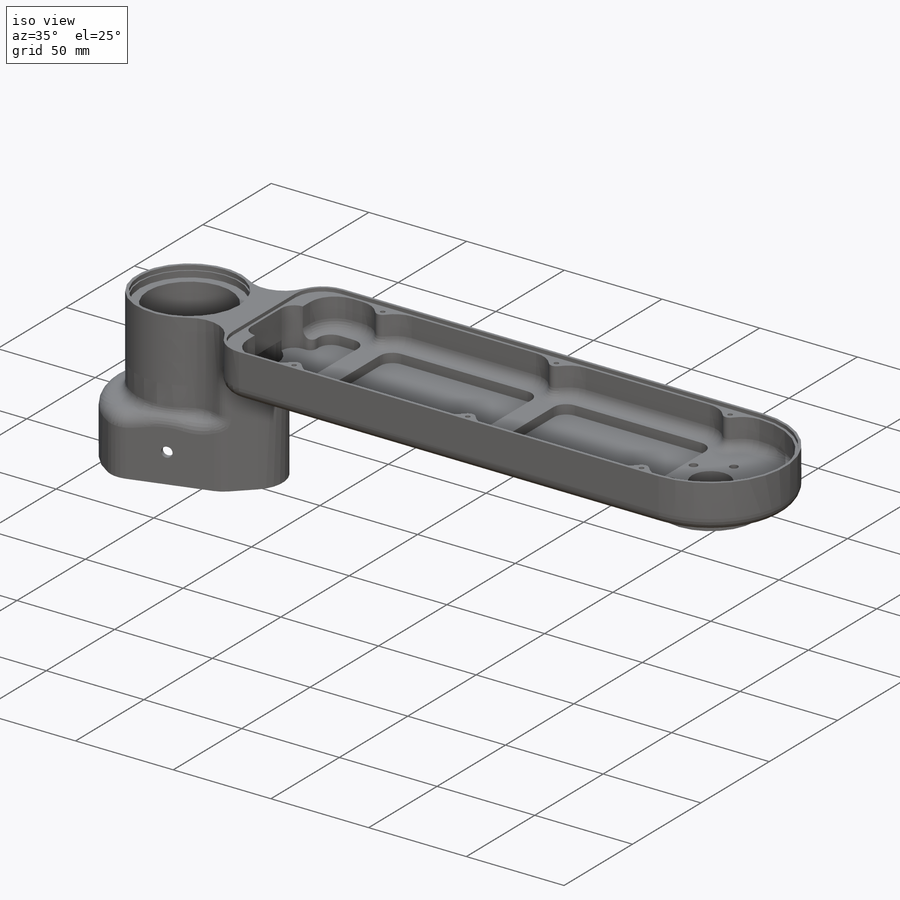
[diagram: iso view]
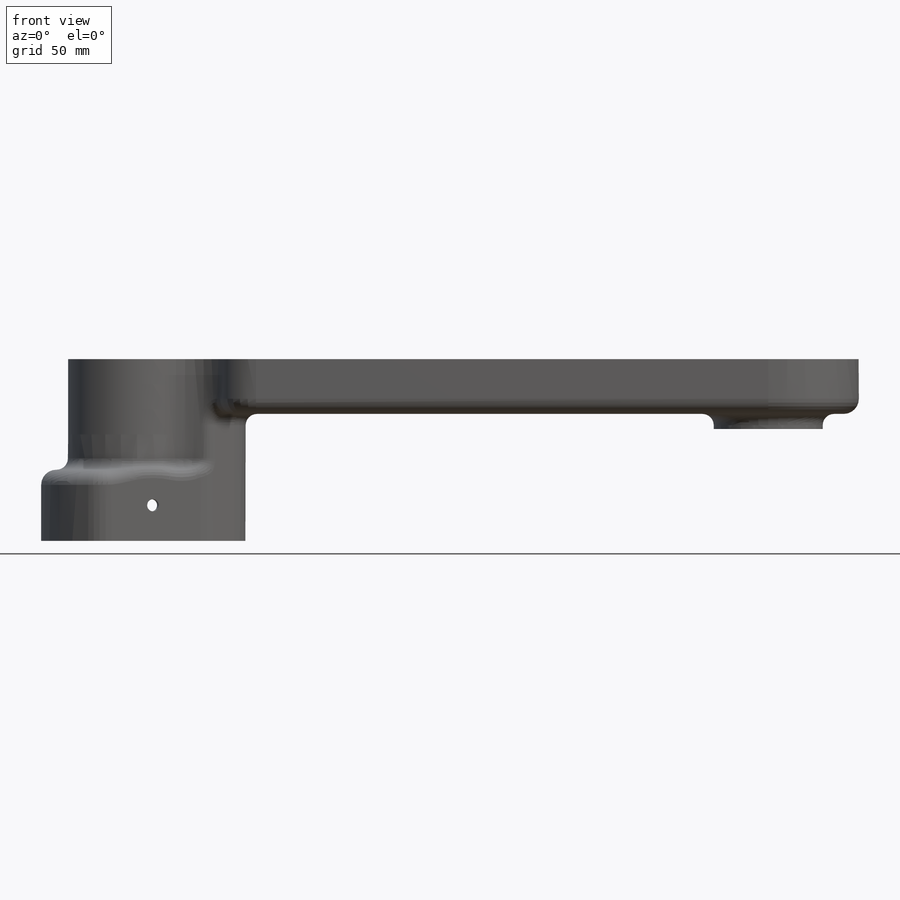
[diagram: front view]
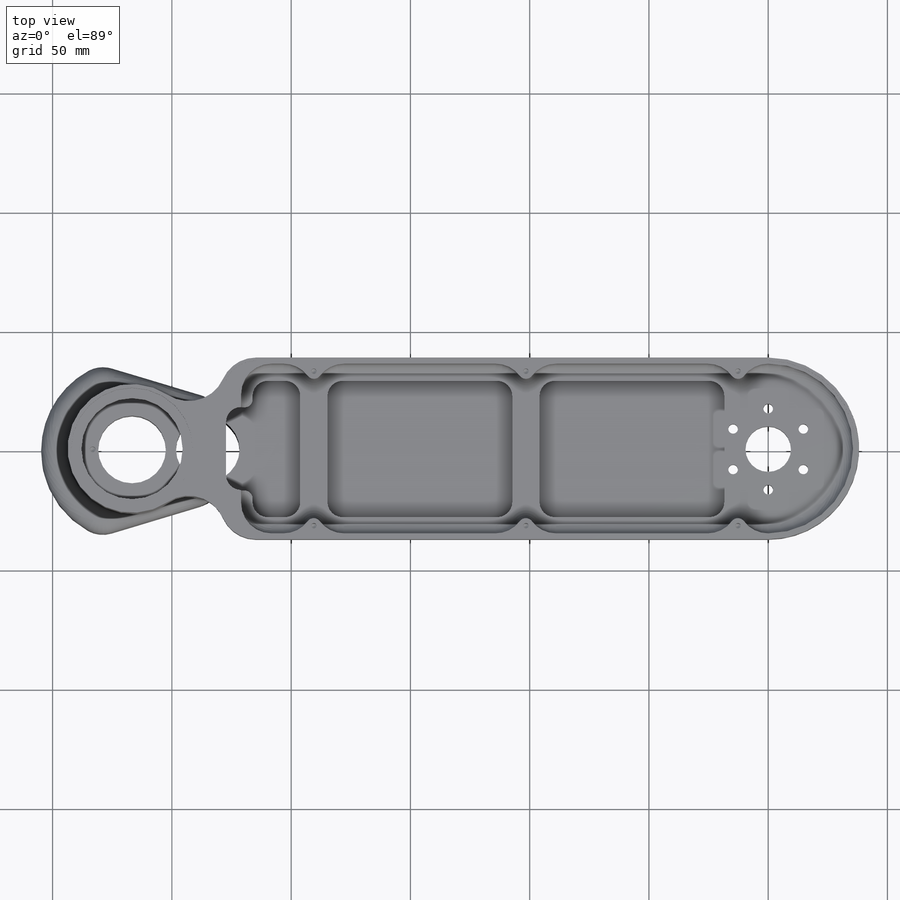
[diagram: top view]
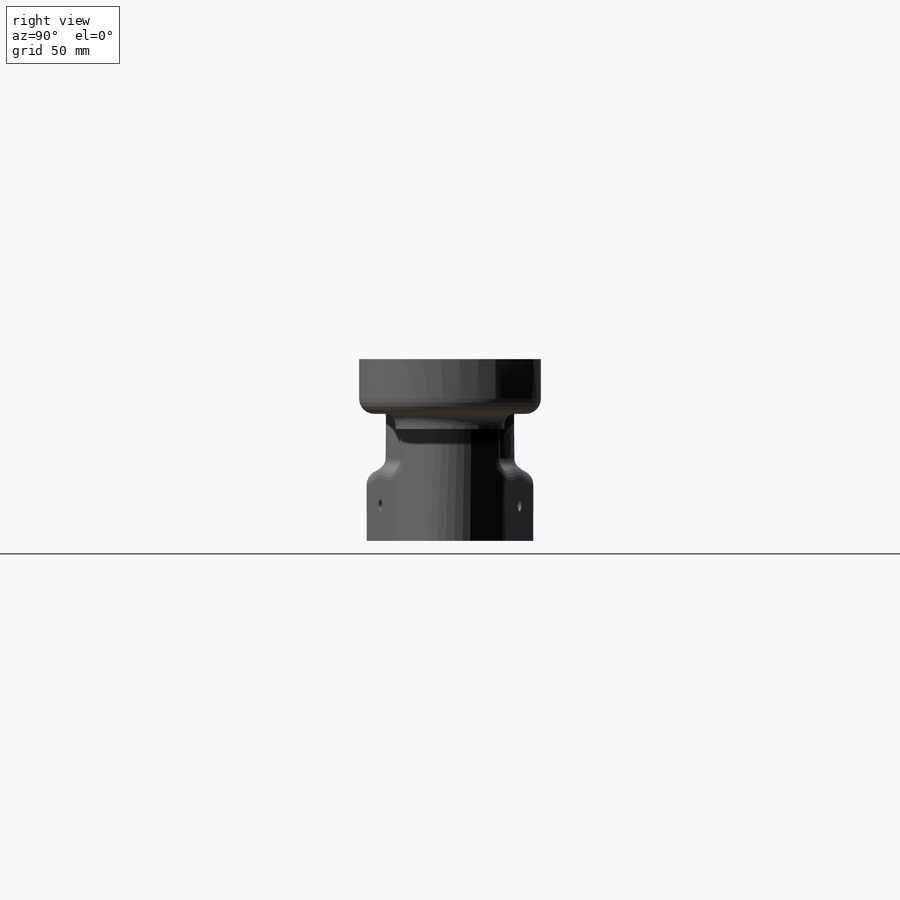
[diagram: right view]
SOLIDWORKS PART (.sldprt)
format: sldprt  version: not decoded by parser v0  size: 4,354,048 bytes
history: native  units: mm
features: sketch x43, cut_extrude x14, hole x10, extrude x7, fillet x7, plane x4, thread x4, pattern_circular x4, mirror x4, pattern_linear x4, delete_body x3, cut_revolve x2, material x1 + 1 further entry (+8 scaffold rows collapsed)
feature tree (116):
  scaffold x8  (default folders/planes/origin — collapsed)
  material  "Delrin 2700 NC010, Low Viscosity Acetal Copolymer (SS)"
  plane  "Front-Back Midplane"
  plane  "Horizontal Midplane"
  plane  "Left-Right Midplane"
  plane  "Plane1"  Offset=266.7mm
  "Hand"
  sketch  "Sketch1"  dims[D1=76.2mm D2=304.8mm]
  extrude  "Boss-Extrude1"  Depth=31.75mm
  sketch  "Sketch2"  dims[c1.D2=15.875mm c1.D1=304.8mm c2.D1=15.0deg c3.D1=31.75mm]
  cut_extrude  "Cut-Extrude1"  Depth=8.78078mm
  sketch  "Sketch4"  dims[c1.D1=2.54mm c1.D2=3.2258mm c1.D3=~18.75028mm c1.D4=~11.99896mm c1.D5=9.5377mm c1.D6=3.175mm c1.D7=2.54mm c2.D3=~8.32104mm c2.D1=6.35mm]
  cut_revolve  "Cut-Revolve1"  Angle=360deg
  sketch  "Sketch5"  dims[c1.D4=12.7mm c1.D5=57.15mm c1.D6=6.35mm c2.D5=12.7mm c2.D1=38.1mm c2.D2=190.5mm c2.D3=2.54mm c3.D2=182.88mm]
  cut_extrude  "Cut-Extrude2"  [1 undecoded]
  sketch  "Sketch6"  dims[c1.D1=31.75mm c1.D2=21.8059mm c1.D3=14.1986mm c1.D4=15.2146mm c1.D5=1.4224mm c1.D6=8.7376mm c1.D7=7.9502mm c1.D8=17.78mm c1.D9=27.1018mm c2.D6=7.9502mm c2.D7=10.6426mm c2.D10=26.125mm c2.D11=0.99mm c2.D12=21.3106mm c2.D13=5.3086mm c2.D14=25.4508mm c2.D2=21.2344mm c2.D9=23.9268mm c2.D15=25.4508mm c3.D7=6.2484mm c3.D13=5.7531mm]
  cut_revolve  "Cut-Revolve2"  Angle=360deg
  sketch  "Sketch35"  dims[D1=45.72mm]
  extrude  "Boss-Extrude7"  Depth=6.35mm
  hole  "#10-32 Tapped Hole1"  Diameter=4.0386mm Depth=29.31922mm
  sketch  "Sketch13"  dims[c1.D1=17.0mm c1.D2=~16.532039mm c2.D2=30.0deg]
  sketch  "Sketch12"  dims[hole-wizard template sketch: 60 standard entries collapsed; hole parameters kept: c18.Thru Tap Drill Depth=~29.31922mm]
  thread  "Hole Thread6"  Diameter=4.826mm  [1 undecoded]
  pattern_circular  "CirPattern1"  Count=6 Angle=60deg
  hole  "#3-48 Tapped Hole1"  Diameter=1.9939mm Depth=6.604mm
  sketch  "Sketch15"  dims[D1=18.0mm]
  sketch  "Sketch14"  dims[hole-wizard template sketch: 47 standard entries collapsed; hole parameters kept: c15.Tap Drill Depth=6.604mm c15.D3=~14.816244mm c15.Drill Angle=118.0deg]
  thread  "Hole Thread3"  Diameter=5.0292mm  [1 undecoded]
  pattern_circular  "CirPattern2"  Count=3 Angle=360deg
  sketch  "Sketch16"
  cut_extrude  "Cut-Extrude6"  [1 undecoded]
  sketch  "Sketch17"  dims[c1.D2=~15.08125mm c1.D3=13.843mm c2.D2=38.1mm c2.D1=1.27mm]
  cut_extrude  "Cut-Extrude7"  Depth=1.778mm
  sketch  "Sketch19"  dims[c1.D1=5.715mm c1.D2=12.7mm c2.D1=3.175mm c2.D3=76.2mm]
  extrude  "Boss-Extrude4"  [1 undecoded]
  hole  "#4-40 Tapped Hole1"  Diameter=2.2606mm Depth=8.89mm
  sketch  "Sketch21"
  sketch  "Sketch20"  dims[hole-wizard template sketch: 50 standard entries collapsed; hole parameters above]
  thread  "Hole Thread4"  Diameter=6.985mm  [1 undecoded]
  mirror  "Mirror3"
  pattern_linear  "LPattern1"  Count1=3 Count2=1 Spacing1=88.9mm Spacing2=2.54mm
  sketch  "Sketch22"  dims[c1.D2=0.254mm c1.D1=0.127mm c2.D2=0.254mm]
  extrude  "Boss-Extrude5"  Depth=0.79375mm
  sketch  "Sketch36"  dims[D1=53.975mm D2=15.875mm D3=15.24mm D4=0.635mm]
  cut_extrude  "Cut-Extrude9"  Depth=46.355mm
  hole  "#4 Clearance Hole3"  Diameter=3.2639mm Depth=75.21575mm
  sketch  "Sketch24"
  sketch  "Sketch23"  dims[hole-wizard template sketch: 60 standard entries collapsed; hole parameters kept: c18.Thru Hole Depth=~75.21575mm]
  sketch  "Sketch43"  dims[c1.D1=~33.170097mm c2.D1=16.75deg c2.D2=25.4mm]
  extrude  "Boss-Extrude8"  [1 undecoded]
  fillet  "Fillet8"  Radius=4.7625mm
  sketch  "Sketch44"  dims[D1=5.08mm]
  cut_extrude  "Cut-Extrude14"  [1 undecoded]
  hole  "#10 Clearance Hole1"  Diameter=5.1054mm Depth=10.16mm
  sketch  "Sketch46"
  sketch  "Sketch45"  dims[hole-wizard template sketch: 47 standard entries collapsed; hole parameters kept: c15.Hole Depth=10.16mm c15.D3=~14.816244mm c15.Drill Angle=118.0deg]
  mirror  "Mirror6"
  fillet  "Fillet9"  Radius=12.7mm
  sketch  "Sketch7"  dims[D1=2.54mm]
  cut_extrude  "Cut-Extrude3"  [1 undecoded]
  sketch  "Sketch8"  dims[D1=1.27mm]
  cut_extrude  "Cut-Extrude4"  Depth=1.5875mm
  sketch  "Sketch11"  dims[c1.D1=66.675mm c1.D2=12.7mm c1.D3=22.225mm c2.D1=19.05mm]
  cut_extrude  "Cut-Extrude5"  [1 undecoded]
  sketch  "Sketch10"  dims[D1=0.127mm]
  extrude  "Boss-Extrude2"  Depth=0.79375mm
  sketch  "Sketch25"  dims[c1.D1=5.3975mm c1.D2=12.7mm c2.D1=12.7mm c2.D3=29.845mm]
  extrude  "Boss-Extrude6"  [1 undecoded]
  hole  "#4-40 Tapped Hole2"  Diameter=2.2606mm Depth=10.16mm
  sketch  "Sketch27"
  sketch  "Sketch26"  dims[hole-wizard template sketch: 47 standard entries collapsed; hole parameters kept: c15.Tap Drill Depth=10.16mm c15.D3=~14.816244mm c15.Drill Angle=118.0deg]
  thread  "Hole Thread8"  Diameter=6.985mm  [1 undecoded]
  mirror  "Mirror4"
  hole  "#4 Clearance Hole2"  Diameter=3.2639mm Depth=75.40625mm
  sketch  "Sketch29"
  sketch  "Sketch28"  dims[hole-wizard template sketch: 60 standard entries collapsed; hole parameters kept: c18.Thru Hole Depth=~75.40625mm]
  fillet  "Fillet3"  Radius=4.7625mm
  hole  "3/32 (0.09375) Diameter Hole1"  Diameter=2.38125mm Depth=10.16mm
  sketch  "Sketch31"  dims[D1=16.51mm]
  sketch  "Sketch30"  dims[hole-wizard template sketch: 47 standard entries collapsed; hole parameters kept: c15.Hole Depth=10.16mm c15.D3=~14.816244mm c15.Drill Angle=118.0deg]
  hole  "1/4 (0.25) Diameter Hole1"  Diameter=6.35mm Depth=75.40625mm
  sketch  "Sketch33"
  sketch  "Sketch32"  dims[hole-wizard template sketch: 60 standard entries collapsed; hole parameters kept: c18.Thru Hole Depth=~75.40625mm]
  sketch  "Sketch34"  dims[c1.D1=6.35mm c1.D2=6.35mm c1.D3=38.1mm c2.D2=25.4mm]
  cut_extrude  "Cut-Extrude8"  Depth=1.5875mm
  pattern_linear  "LPattern2"  Count1=13 Count2=1 Spacing1=19.431mm Spacing2=2.54mm
  delete_body  "Body-Delete1"
  delete_body  "Body-Delete2"
  delete_body  "Body-Delete3"
  fillet  "Fillet4"  Radius=4.7625mm
  sketch  "Sketch38"  dims[c1.D1=6.35mm c1.D6=6.35mm c1.D7=2.2606mm c1.D9=2.2606mm c1.D11=6.35mm c1.D12=3.175mm c1.D2=28.575mm c1.D3=28.575mm c1.D4=47.625mm c1.D5=25.4mm c2.D7=5.715mm c2.D5=5.715mm c2.D8=5.715mm c2.D9=5.715mm c2.D10=5.715mm c2.D4=1.27mm c2.D13=22.225mm]
  cut_extrude  "Cut-Extrude11"  Depth=1.5875mm
  fillet  "Fillet5"  Radius=4.7625mm
  fillet  "Fillet6"  Radius=4.7625mm
  sketch  "Sketch39"  dims[c1.D2=5.588mm c1.D1=18.161mm c1.D3=~15.676083mm c2.D3=17.5deg]
  cut_extrude  "Cut-Extrude12"  [1 undecoded]
  pattern_circular  "CirPattern3"  Count=6 Angle=128.5deg
  sketch  "Sketch40"  dims[D1=10.795mm D4=9.525mm D2=30.226mm D3=12.065mm D5=31.369mm]
  cut_extrude  "Cut-Extrude13"  [1 undecoded]
  mirror  "Mirror5"
  fillet  "Fillet7"  Radius=6.35mm
  hole  "#4 Clearance Hole4"  Diameter=3.2639mm Depth=0.79375mm
  sketch  "Sketch42"  dims[D1=5.715mm]
  sketch  "Sketch41"  dims[hole-wizard template sketch: 60 standard entries collapsed; hole parameters kept: c18.Thru Hole Depth=~0.79375mm]
  pattern_circular  "CirPattern4"  Count=3 Angle=360deg
  sketch  "Sketch47"  dims[D2=25.4mm D1=25.4mm]
  cut_extrude  "Cut-Extrude15"  Depth=3.175mm
  pattern_linear  "LPattern3"  Count1=2 Count2=1 Spacing1=22.225mm Spacing2=50mm
  pattern_linear  "LPattern4"  Count1=2 Count2=1 Spacing1=22.225mm Spacing2=50mm
decode coverage: 78 of 102 modeling features carry decoded parameters; 1 rows unclassified (native names shown)
note: ~ marks probable driven/reference dimensions
note: 14 parameter values undecoded
summary: no parameter record found for 10 features; Diameter pulled from absorbed wizard sketch
note: suppression state not decoded; provenance and decode notes live in map.json
